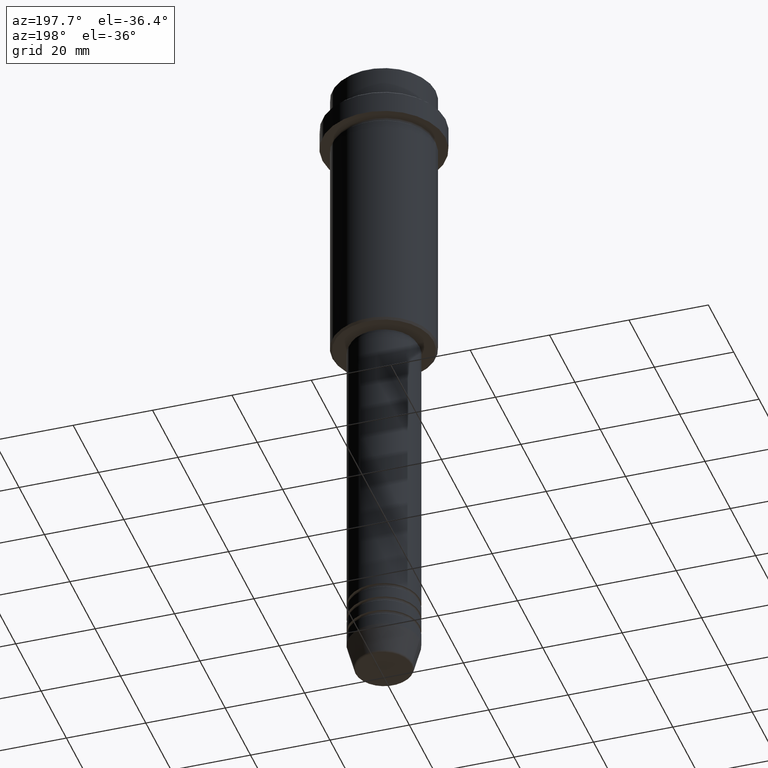
[diagram: clean part render]
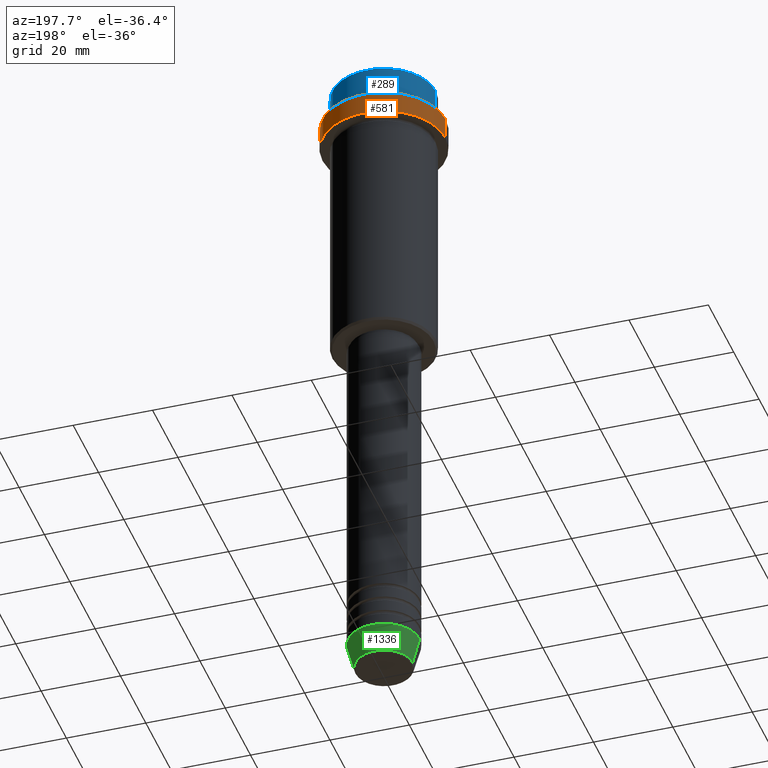
[diagram: same view with three faces highlighted in distinct colors, each labeled with its STEP entity id]
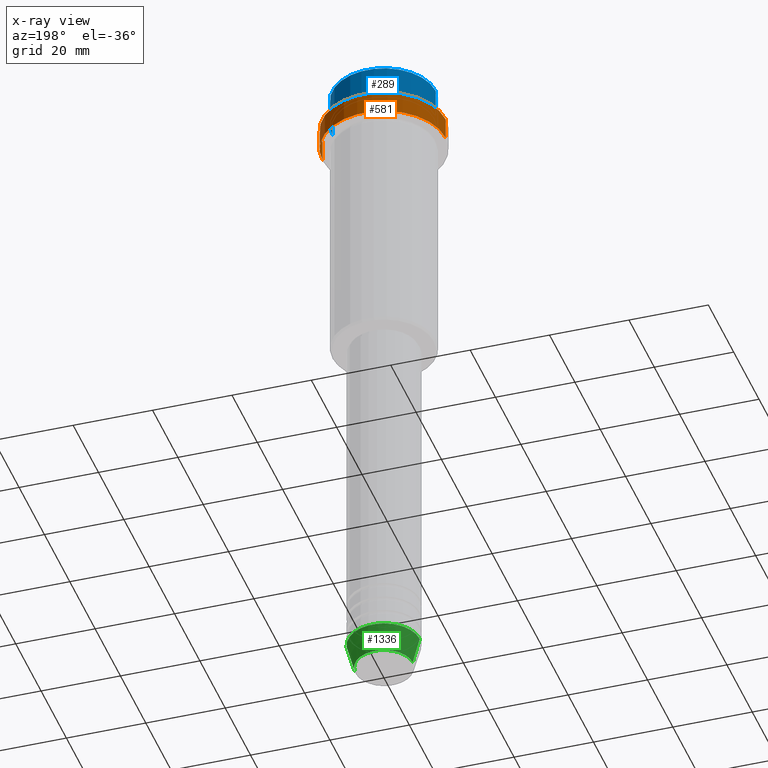
[diagram: x-ray of the same camera — body ghosted, the three highlighted faces saturated]
A machine part, auxiliary view with three faces highlighted in distinct colors.
The next image is the same camera in x-ray (body ghosted, the three faces saturated) — at least one of them is partly hidden behind the body in this view.
Their STEP definitions:

[orange] entity #581 — the highlighted cylindrical surface (partial cylindrical patch) has radius 15.5 mm, axis along (-0, -0, 1).
#104 = CARTESIAN_POINT ( 'NONE',  ( 0.000000000000000000, 0.000000000000000000, -15.00000000000000000 ) ) ;
#140 = DIRECTION ( 'NONE',  ( 1.000000000000000000, 0.000000000000000000, 0.000000000000000000 ) ) ;
#157 = VERTEX_POINT ( 'NONE', #1119 ) ;
#174 = VERTEX_POINT ( 'NONE', #561 ) ;
#182 = LINE ( 'NONE', #1073, #1059 ) ;
#218 = VERTEX_POINT ( 'NONE', #985 ) ;
#313 = ORIENTED_EDGE ( 'NONE', *, *, #660, .T. ) ;
#315 = EDGE_CURVE ( 'NONE', #218, #174, #1127, .T. ) ;
#447 = DIRECTION ( 'NONE',  ( -0.000000000000000000, -0.000000000000000000, 1.000000000000000000 ) ) ;
#503 = AXIS2_PLACEMENT_3D ( 'NONE', #800, #1344, #140 ) ;
#542 = ORIENTED_EDGE ( 'NONE', *, *, #1150, .T. ) ;
#561 = CARTESIAN_POINT ( 'NONE',  ( 15.50000000000000000, 0.000000000000000000, -9.500000000000026645 ) ) ;
#581 = ADVANCED_FACE ( 'NONE', ( #847 ), #944, .T. ) ;
#598 = AXIS2_PLACEMENT_3D ( 'NONE', #104, #1184, #882 ) ;
#608 = EDGE_CURVE ( 'NONE', #624, #174, #182, .T. ) ;
#624 = VERTEX_POINT ( 'NONE', #1407 ) ;
#660 = EDGE_CURVE ( 'NONE', #157, #218, #892, .T. ) ;
#708 = VECTOR ( 'NONE', #447, 1000.000000000000000 ) ;
#733 = DIRECTION ( 'NONE',  ( -0.000000000000000000, -0.000000000000000000, 1.000000000000000000 ) ) ;
#751 = CARTESIAN_POINT ( 'NONE',  ( 0.000000000000000000, 0.000000000000000000, 0.000000000000000000 ) ) ;
#753 = ORIENTED_EDGE ( 'NONE', *, *, #608, .F. ) ;
#800 = CARTESIAN_POINT ( 'NONE',  ( 0.000000000000000000, 0.000000000000000000, -9.500000000000026645 ) ) ;
#847 = FACE_OUTER_BOUND ( 'NONE', #1161, .T. ) ;
#882 = DIRECTION ( 'NONE',  ( 1.000000000000000000, 0.000000000000000000, 0.000000000000000000 ) ) ;
#892 = LINE ( 'NONE', #1209, #708 ) ;
#923 = ORIENTED_EDGE ( 'NONE', *, *, #315, .T. ) ;
#933 = DIRECTION ( 'NONE',  ( 1.000000000000000000, 0.000000000000000000, 0.000000000000000000 ) ) ;
#944 = CYLINDRICAL_SURFACE ( 'NONE', #968, 15.50000000000000000 ) ;
#966 = DIRECTION ( 'NONE',  ( -0.000000000000000000, -0.000000000000000000, 1.000000000000000000 ) ) ;
#968 = AXIS2_PLACEMENT_3D ( 'NONE', #751, #733, #933 ) ;
#985 = CARTESIAN_POINT ( 'NONE',  ( -15.50000000000000000, 1.898202538678397557E-15, -9.500000000000026645 ) ) ;
#1059 = VECTOR ( 'NONE', #966, 1000.000000000000000 ) ;
#1073 = CARTESIAN_POINT ( 'NONE',  ( 15.50000000000000000, 0.000000000000000000, 0.000000000000000000 ) ) ;
#1119 = CARTESIAN_POINT ( 'NONE',  ( -15.50000000000000000, 1.898202538678397557E-15, -15.00000000000000000 ) ) ;
#1127 = CIRCLE ( 'NONE', #503, 15.50000000000000000 ) ;
#1150 = EDGE_CURVE ( 'NONE', #624, #157, #1165, .T. ) ;
#1161 = EDGE_LOOP ( 'NONE', ( #542, #313, #923, #753 ) ) ;
#1165 = CIRCLE ( 'NONE', #598, 15.50000000000000000 ) ;
#1184 = DIRECTION ( 'NONE',  ( -0.000000000000000000, -0.000000000000000000, 1.000000000000000000 ) ) ;
#1209 = CARTESIAN_POINT ( 'NONE',  ( -15.50000000000000000, 1.898202538678397557E-15, 0.000000000000000000 ) ) ;
#1344 = DIRECTION ( 'NONE',  ( 0.000000000000000000, 0.000000000000000000, -1.000000000000000000 ) ) ;
#1407 = CARTESIAN_POINT ( 'NONE',  ( 15.50000000000000000, 0.000000000000000000, -15.00000000000000000 ) ) ;

[blue] entity #289 — the highlighted cylindrical surface (partial cylindrical patch) has radius 13 mm, axis along (-0, -0, 1).
#1 = ORIENTED_EDGE ( 'NONE', *, *, #820, .F. ) ;
#21 = EDGE_CURVE ( 'NONE', #1171, #322, #1294, .T. ) ;
#33 = CIRCLE ( 'NONE', #1245, 12.99999999999999822 ) ;
#43 = DIRECTION ( 'NONE',  ( 1.000000000000000000, 0.000000000000000000, 0.000000000000000000 ) ) ;
#94 = ORIENTED_EDGE ( 'NONE', *, *, #871, .T. ) ;
#128 = CARTESIAN_POINT ( 'NONE',  ( 12.99999999999999822, 0.000000000000000000, -7.999999999999998224 ) ) ;
#160 = DIRECTION ( 'NONE',  ( -0.000000000000000000, -0.000000000000000000, 1.000000000000000000 ) ) ;
#165 = VERTEX_POINT ( 'NONE', #128 ) ;
#260 = DIRECTION ( 'NONE',  ( -0.000000000000000000, -0.000000000000000000, 1.000000000000000000 ) ) ;
#271 = CARTESIAN_POINT ( 'NONE',  ( 0.000000000000000000, 0.000000000000000000, -0.4999999999999483746 ) ) ;
#286 = AXIS2_PLACEMENT_3D ( 'NONE', #1140, #160, #679 ) ;
#289 = ADVANCED_FACE ( 'NONE', ( #663 ), #588, .T. ) ;
#319 = CARTESIAN_POINT ( 'NONE',  ( -12.99999999999999822, 1.592040838891558898E-15, 0.000000000000000000 ) ) ;
#322 = VERTEX_POINT ( 'NONE', #597 ) ;
#331 = CARTESIAN_POINT ( 'NONE',  ( 12.99999999999999822, 0.000000000000000000, -0.4999999999999483746 ) ) ;
#482 = DIRECTION ( 'NONE',  ( -0.000000000000000000, -0.000000000000000000, 1.000000000000000000 ) ) ;
#588 = CYLINDRICAL_SURFACE ( 'NONE', #704, 12.99999999999999822 ) ;
#597 = CARTESIAN_POINT ( 'NONE',  ( -12.99999999999999822, 1.592040838891558898E-15, -0.4999999999999483746 ) ) ;
#661 = CARTESIAN_POINT ( 'NONE',  ( -12.99999999999999822, 1.592040838891558898E-15, -7.999999999999998224 ) ) ;
#663 = FACE_OUTER_BOUND ( 'NONE', #1050, .T. ) ;
#679 = DIRECTION ( 'NONE',  ( 1.000000000000000000, 0.000000000000000000, 0.000000000000000000 ) ) ;
#704 = AXIS2_PLACEMENT_3D ( 'NONE', #808, #260, #1018 ) ;
#794 = EDGE_CURVE ( 'NONE', #322, #1157, #33, .T. ) ;
#799 = ORIENTED_EDGE ( 'NONE', *, *, #21, .T. ) ;
#808 = CARTESIAN_POINT ( 'NONE',  ( 0.000000000000000000, 0.000000000000000000, 0.000000000000000000 ) ) ;
#820 = EDGE_CURVE ( 'NONE', #165, #1157, #1137, .T. ) ;
#851 = VECTOR ( 'NONE', #482, 1000.000000000000000 ) ;
#871 = EDGE_CURVE ( 'NONE', #165, #1171, #1314, .T. ) ;
#909 = DIRECTION ( 'NONE',  ( 0.000000000000000000, 0.000000000000000000, -1.000000000000000000 ) ) ;
#972 = DIRECTION ( 'NONE',  ( -0.000000000000000000, -0.000000000000000000, 1.000000000000000000 ) ) ;
#1018 = DIRECTION ( 'NONE',  ( 1.000000000000000000, 0.000000000000000000, 0.000000000000000000 ) ) ;
#1050 = EDGE_LOOP ( 'NONE', ( #94, #799, #1096, #1 ) ) ;
#1096 = ORIENTED_EDGE ( 'NONE', *, *, #794, .T. ) ;
#1133 = CARTESIAN_POINT ( 'NONE',  ( 12.99999999999999822, 0.000000000000000000, 0.000000000000000000 ) ) ;
#1137 = LINE ( 'NONE', #1133, #851 ) ;
#1140 = CARTESIAN_POINT ( 'NONE',  ( 0.000000000000000000, 0.000000000000000000, -7.999999999999998224 ) ) ;
#1157 = VERTEX_POINT ( 'NONE', #331 ) ;
#1171 = VERTEX_POINT ( 'NONE', #661 ) ;
#1214 = VECTOR ( 'NONE', #972, 1000.000000000000000 ) ;
#1245 = AXIS2_PLACEMENT_3D ( 'NONE', #271, #909, #43 ) ;
#1294 = LINE ( 'NONE', #319, #1214 ) ;
#1314 = CIRCLE ( 'NONE', #286, 12.99999999999999822 ) ;

[green] entity #1336 — the highlighted conical surface has half-angle 15 deg.
#10 = DIRECTION ( 'NONE',  ( 1.000000000000000000, 0.000000000000000000, 0.000000000000000000 ) ) ;
#139 = VECTOR ( 'NONE', #1204, 1000.000000000000000 ) ;
#149 = VERTEX_POINT ( 'NONE', #609 ) ;
#269 = EDGE_CURVE ( 'NONE', #149, #1041, #1056, .T. ) ;
#305 = CONICAL_SURFACE ( 'NONE', #1055, 9.000000000000000000, 0.2617993877991500740 ) ;
#327 = CARTESIAN_POINT ( 'NONE',  ( 0.000000000000000000, 0.000000000000000000, -163.0000000000000000 ) ) ;
#336 = DIRECTION ( 'NONE',  ( -0.000000000000000000, -0.000000000000000000, 1.000000000000000000 ) ) ;
#348 = CARTESIAN_POINT ( 'NONE',  ( 0.000000000000000000, 0.000000000000000000, -163.0000000000000000 ) ) ;
#365 = DIRECTION ( 'NONE',  ( -0.000000000000000000, -0.000000000000000000, 1.000000000000000000 ) ) ;
#386 = DIRECTION ( 'NONE',  ( -0.2588190451025213501, 3.169619151431772337E-17, 0.9659258262890680902 ) ) ;
#402 = ORIENTED_EDGE ( 'NONE', *, *, #936, .T. ) ;
#404 = CARTESIAN_POINT ( 'NONE',  ( 7.223655072137188604, 0.000000000000000000, -169.6294095225512990 ) ) ;
#420 = AXIS2_PLACEMENT_3D ( 'NONE', #634, #837, #1057 ) ;
#451 = VERTEX_POINT ( 'NONE', #710 ) ;
#492 = EDGE_LOOP ( 'NONE', ( #402, #928, #718, #826 ) ) ;
#609 = CARTESIAN_POINT ( 'NONE',  ( 9.000000000000000000, 0.000000000000000000, -163.0000000000000000 ) ) ;
#634 = CARTESIAN_POINT ( 'NONE',  ( 0.000000000000000000, 0.000000000000000000, -169.6294095225512990 ) ) ;
#698 = EDGE_CURVE ( 'NONE', #926, #149, #1000, .T. ) ;
#710 = CARTESIAN_POINT ( 'NONE',  ( -7.223655072137189492, 9.934123627281765110E-16, -169.6294095225512990 ) ) ;
#718 = ORIENTED_EDGE ( 'NONE', *, *, #269, .F. ) ;
#758 = CARTESIAN_POINT ( 'NONE',  ( 9.000000000000000000, 0.000000000000000000, -163.0000000000000000 ) ) ;
#779 = AXIS2_PLACEMENT_3D ( 'NONE', #327, #336, #10 ) ;
#826 = ORIENTED_EDGE ( 'NONE', *, *, #698, .F. ) ;
#837 = DIRECTION ( 'NONE',  ( -0.000000000000000000, -0.000000000000000000, 1.000000000000000000 ) ) ;
#926 = VERTEX_POINT ( 'NONE', #404 ) ;
#928 = ORIENTED_EDGE ( 'NONE', *, *, #981, .T. ) ;
#936 = EDGE_CURVE ( 'NONE', #926, #451, #1034, .T. ) ;
#981 = EDGE_CURVE ( 'NONE', #451, #1041, #1280, .T. ) ;
#1000 = LINE ( 'NONE', #758, #139 ) ;
#1034 = CIRCLE ( 'NONE', #420, 7.223655072137188604 ) ;
#1041 = VERTEX_POINT ( 'NONE', #1047 ) ;
#1047 = CARTESIAN_POINT ( 'NONE',  ( -9.000000000000000000, 1.102182119232617714E-15, -163.0000000000000000 ) ) ;
#1055 = AXIS2_PLACEMENT_3D ( 'NONE', #348, #365, #1341 ) ;
#1056 = CIRCLE ( 'NONE', #779, 9.000000000000000000 ) ;
#1057 = DIRECTION ( 'NONE',  ( 1.000000000000000000, 0.000000000000000000, 0.000000000000000000 ) ) ;
#1204 = DIRECTION ( 'NONE',  ( 0.2588190451025213501, 0.000000000000000000, 0.9659258262890680902 ) ) ;
#1280 = LINE ( 'NONE', #1367, #1291 ) ;
#1291 = VECTOR ( 'NONE', #386, 1000.000000000000000 ) ;
#1336 = ADVANCED_FACE ( 'NONE', ( #1346 ), #305, .T. ) ;
#1341 = DIRECTION ( 'NONE',  ( 1.000000000000000000, 0.000000000000000000, 0.000000000000000000 ) ) ;
#1346 = FACE_OUTER_BOUND ( 'NONE', #492, .T. ) ;
#1367 = CARTESIAN_POINT ( 'NONE',  ( -9.000000000000000000, 1.102182119232617714E-15, -163.0000000000000000 ) ) ;